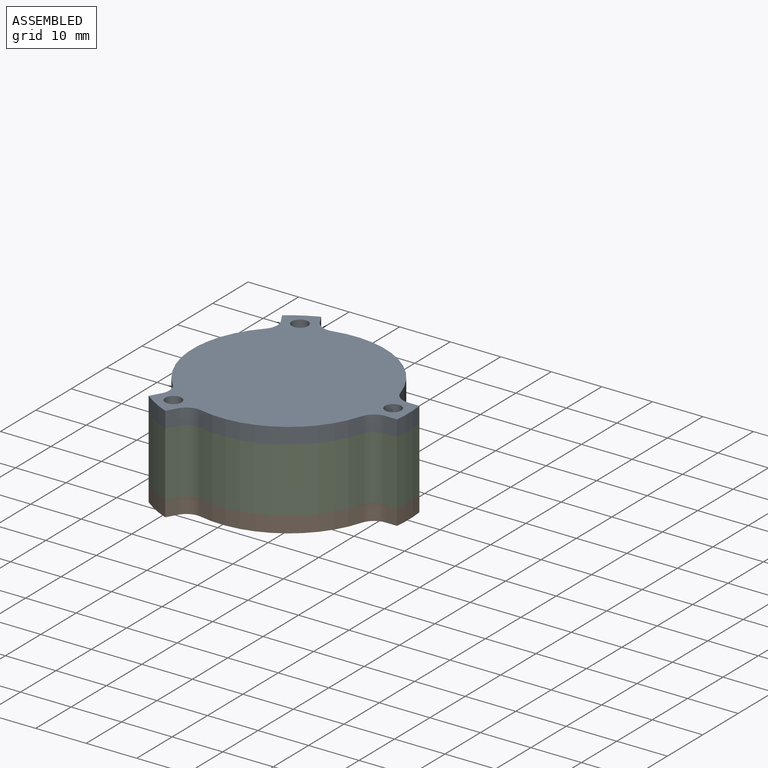
[diagram: assembled view]
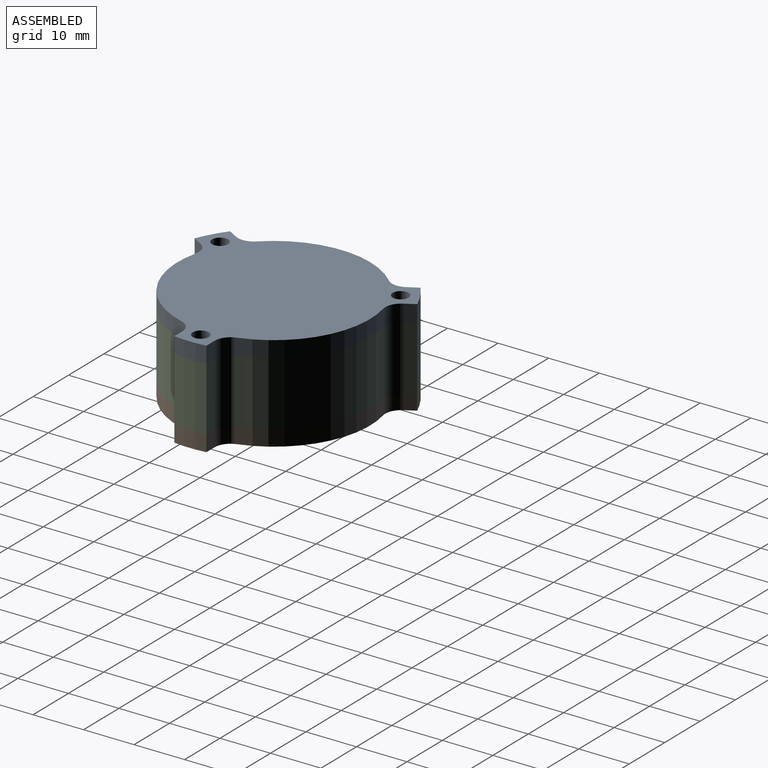
[diagram: assembled view, second angle]
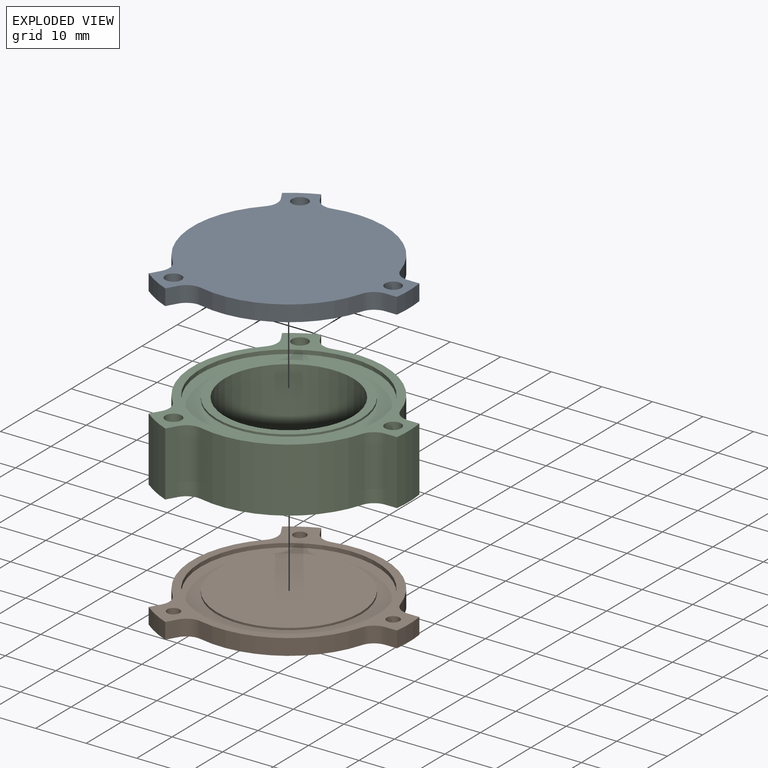
[diagram: exploded view]
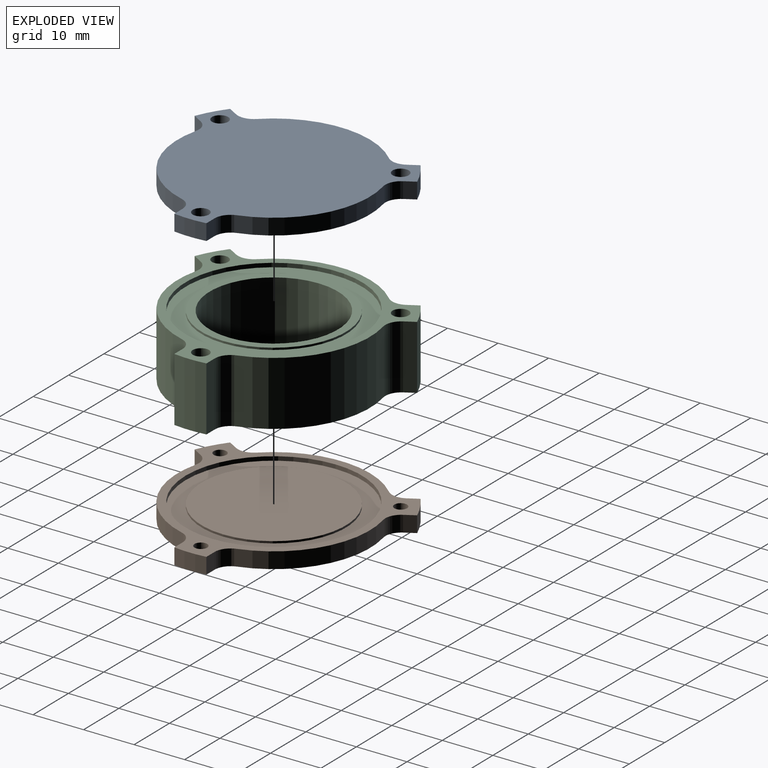
[diagram: exploded view, second angle]
ASSEMBLY  parts=3 mates=6
PART A: 27 faces, bbox 42.9x44.1x3.2 mm
  f0: plane 44.05x42.86mm, normal (0,0,-1), area 256.1mm2, adj f1,f2,f3,f4,f5,f8,f11,f12
  f1: cylinder r=19.05mm len=22.67mm, axis (0,0,-1), area 91.6mm2, adj f0,f6,f13,f19
  f2: plane 3.18x2.3mm, normal (0,-1,0), area 7.3mm2, adj f0,f3,f6,f13
  f3: cylinder r=23.81mm len=6.35mm, axis (0,0,-1), area 20.2mm2, adj f0,f2,f4,f6
  f4: plane 3.18x2.3mm, normal (0,1,0), area 7.3mm2, adj f0,f3,f6,f12
  f5: cylinder r=19.05mm len=22.67mm, axis (0,0,-1), area 91.6mm2, adj f0,f6,f12,f26
  f6: plane 44.05x42.86mm, normal (0,0,1), area 1214mm2, adj f1,f2,f3,f4,f5,f11,f12,f13
  f7: plane 28.58x28.58mm, normal (0,0,-1), area 641.3mm2, adj f9
  f8: cylinder r=17.46mm len=34.93mm, axis (0,0,-1), area 87.1mm2, adj f0,f10
  f9: cylinder r=14.29mm len=28.58mm, axis (0,0,-1), area 35.6mm2, adj f7,f10
  f10: plane 34.93x34.93mm, normal (0,0,-1), area 316.7mm2, adj f8,f9
  f11: cylinder r=1.6mm len=3.2mm, axis (0,0,1), area 31.9mm2, adj f0,f6
  f12: cylinder r=3.17mm len=3.18mm, axis (0,0,-1), area 12.9mm2, adj f0,f4,f5,f6
  f13: cylinder r=3.17mm len=3.18mm, axis (0,0,-1), area 12.9mm2, adj f0,f1,f2,f6
  f14: cylinder r=19.05mm len=26.18mm, axis (0,0,-1), area 91.6mm2, adj f0,f6,f20,f25
  f15: plane 3.18x1.99mm, normal (-0.87,0.5,0), area 7.3mm2, adj f0,f6,f16,f20
  f16: cylinder r=23.81mm len=5.5mm, axis (0,0,-1), area 20.2mm2, adj f0,f6,f15,f17
  f17: plane 3.18x1.99mm, normal (0.87,-0.5,0), area 7.3mm2, adj f0,f6,f16,f19
  f18: cylinder r=1.6mm len=3.2mm, axis (0,0,1), area 31.9mm2, adj f0,f6
  f19: cylinder r=3.17mm len=3.49mm, axis (0,0,-1), area 12.9mm2, adj f0,f1,f6,f17
  f20: cylinder r=3.17mm len=3.77mm, axis (0,0,-1), area 12.9mm2, adj f0,f6,f14,f15
  f21: plane 3.18x1.99mm, normal (0.87,0.5,0), area 7.3mm2, adj f0,f6,f22,f26
  f22: cylinder r=23.81mm len=5.5mm, axis (0,0,-1), area 20.2mm2, adj f0,f6,f21,f23
  f23: plane 3.18x1.99mm, normal (-0.87,-0.5,0), area 7.3mm2, adj f0,f6,f22,f25
  f24: cylinder r=1.6mm len=3.2mm, axis (0,0,1), area 31.9mm2, adj f0,f6
  f25: cylinder r=3.17mm len=3.77mm, axis (0,0,-1), area 12.9mm2, adj f0,f6,f14,f23
  f26: cylinder r=3.17mm len=3.49mm, axis (0,0,-1), area 12.9mm2, adj f0,f5,f6,f21
PART B: 27 faces, bbox 42.9x44.1x3.2 mm
  f0: cylinder r=19.05mm len=22.67mm, axis (0,0,-1), area 91.6mm2, adj f5,f6,f13,f19
  f1: plane 3.18x2.3mm, normal (0,-1,0), area 7.3mm2, adj f2,f5,f6,f13
  f2: cylinder r=23.81mm len=6.35mm, axis (0,0,-1), area 20.2mm2, adj f1,f3,f5,f6
  f3: plane 3.18x2.3mm, normal (0,1,0), area 7.3mm2, adj f2,f5,f6,f12
  f4: cylinder r=19.05mm len=22.67mm, axis (0,0,-1), area 91.6mm2, adj f5,f6,f12,f26
  f5: plane 44.05x42.86mm, normal (0,0,1), area 265.5mm2, adj f0,f1,f2,f3,f4,f8,f11,f12
  f6: plane 44.05x42.86mm, normal (0,0,-1), area 1223.4mm2, adj f0,f1,f2,f3,f4,f11,f12,f13
  f7: plane 28.58x28.58mm, normal (0,0,1), area 641.3mm2, adj f9
  f8: cylinder r=17.46mm len=34.93mm, axis (0,0,1), area 87.1mm2, adj f5,f10
  f9: cylinder r=14.29mm len=28.58mm, axis (0,0,1), area 35.6mm2, adj f7,f10
  f10: plane 34.93x34.93mm, normal (0,0,1), area 316.7mm2, adj f8,f9
  f11: cylinder r=1.25mm len=3.18mm, axis (0,0,-1), area 24.9mm2, adj f5,f6
  f12: cylinder r=3.17mm len=3.18mm, axis (0,0,-1), area 12.9mm2, adj f3,f4,f5,f6
  f13: cylinder r=3.17mm len=3.18mm, axis (0,0,-1), area 12.9mm2, adj f0,f1,f5,f6
  f14: cylinder r=19.05mm len=26.18mm, axis (0,0,-1), area 91.6mm2, adj f5,f6,f20,f25
  f15: plane 3.18x1.99mm, normal (-0.87,0.5,0), area 7.3mm2, adj f5,f6,f16,f20
  f16: cylinder r=23.81mm len=5.5mm, axis (0,0,-1), area 20.2mm2, adj f5,f6,f15,f17
  f17: plane 3.18x1.99mm, normal (0.87,-0.5,0), area 7.3mm2, adj f5,f6,f16,f19
  f18: cylinder r=1.25mm len=3.18mm, axis (0,0,-1), area 24.9mm2, adj f5,f6
  f19: cylinder r=3.17mm len=3.49mm, axis (0,0,-1), area 12.9mm2, adj f0,f5,f6,f17
  f20: cylinder r=3.17mm len=3.77mm, axis (0,0,-1), area 12.9mm2, adj f5,f6,f14,f15
  f21: plane 3.18x1.99mm, normal (0.87,0.5,0), area 7.3mm2, adj f5,f6,f22,f26
  f22: cylinder r=23.81mm len=5.5mm, axis (0,0,-1), area 20.2mm2, adj f5,f6,f21,f23
  f23: plane 3.18x1.99mm, normal (-0.87,-0.5,0), area 7.3mm2, adj f5,f6,f22,f25
  f24: cylinder r=1.25mm len=3.18mm, axis (0,0,-1), area 24.9mm2, adj f5,f6
  f25: cylinder r=3.17mm len=3.77mm, axis (0,0,-1), area 12.9mm2, adj f5,f6,f14,f23
  f26: cylinder r=3.17mm len=3.49mm, axis (0,0,-1), area 12.9mm2, adj f4,f5,f6,f21
PART C: 32 faces, bbox 42.9x44.1x12.7 mm
  f0: plane 44.05x42.86mm, normal (0,0,-1), area 256.1mm2, adj f2,f3,f4,f5,f6,f13,f16,f17
  f1: cylinder r=12.7mm len=25.4mm, axis (0,0,1), area 950.1mm2, adj f8,f12
  f2: cylinder r=19.05mm len=22.67mm, axis (0,0,-1), area 366.5mm2, adj f0,f7,f16,f24
  f3: plane 12.7x2.3mm, normal (0,-1,0), area 29.2mm2, adj f0,f4,f7,f16
  f4: cylinder r=23.81mm len=12.7mm, axis (0,0,-1), area 80.9mm2, adj f0,f3,f5,f7
  f5: plane 12.7x2.3mm, normal (0,1,0), area 29.2mm2, adj f0,f4,f7,f17
  f6: cylinder r=19.05mm len=22.67mm, axis (0,0,-1), area 366.5mm2, adj f0,f7,f17,f29
  f7: plane 44.05x42.86mm, normal (0,0,1), area 256.1mm2, adj f2,f3,f4,f5,f6,f9,f16,f17
  f8: plane 28.58x28.58mm, normal (0,0,1), area 134.6mm2, adj f1,f10
  f9: cylinder r=17.46mm len=34.93mm, axis (0,0,1), area 87.1mm2, adj f7,f11
  f10: cylinder r=14.29mm len=28.58mm, axis (0,0,1), area 35.6mm2, adj f8,f11
  f11: plane 34.93x34.93mm, normal (0,0,1), area 316.7mm2, adj f9,f10
  f12: plane 28.58x28.58mm, normal (0,0,-1), area 134.6mm2, adj f1,f14
  f13: cylinder r=17.46mm len=34.93mm, axis (0,0,-1), area 87.1mm2, adj f0,f15
  f14: cylinder r=14.29mm len=28.58mm, axis (0,0,-1), area 35.6mm2, adj f12,f15
  f15: plane 34.93x34.93mm, normal (0,0,-1), area 316.7mm2, adj f13,f14
  f16: cylinder r=3.17mm len=12.7mm, axis (0,0,-1), area 51.7mm2, adj f0,f2,f3,f7
  f17: cylinder r=3.17mm len=12.7mm, axis (0,0,-1), area 51.7mm2, adj f0,f5,f6,f7
  f18: cylinder r=1.6mm len=12.7mm, axis (0,0,1), area 127.7mm2, adj f0,f7
  f19: cylinder r=19.05mm len=26.18mm, axis (0,0,-1), area 366.5mm2, adj f0,f7,f23,f30
  f20: plane 12.7x1.99mm, normal (-0.87,0.5,0), area 29.2mm2, adj f0,f7,f21,f23
  f21: cylinder r=23.81mm len=12.7mm, axis (0,0,-1), area 80.9mm2, adj f0,f7,f20,f22
  f22: plane 12.7x1.99mm, normal (0.87,-0.5,0), area 29.2mm2, adj f0,f7,f21,f24
  f23: cylinder r=3.17mm len=12.7mm, axis (0,0,-1), area 51.7mm2, adj f0,f7,f19,f20
  f24: cylinder r=3.17mm len=12.7mm, axis (0,0,-1), area 51.7mm2, adj f0,f2,f7,f22
  f25: cylinder r=1.6mm len=12.7mm, axis (0,0,1), area 127.7mm2, adj f0,f7
  f26: plane 12.7x1.99mm, normal (0.87,0.5,0), area 29.2mm2, adj f0,f7,f27,f29
  f27: cylinder r=23.81mm len=12.7mm, axis (0,0,-1), area 80.9mm2, adj f0,f7,f26,f28
  f28: plane 12.7x1.99mm, normal (-0.87,-0.5,0), area 29.2mm2, adj f0,f7,f27,f30
  f29: cylinder r=3.17mm len=12.7mm, axis (0,0,-1), area 51.7mm2, adj f0,f6,f7,f26
  f30: cylinder r=3.17mm len=12.7mm, axis (0,0,-1), area 51.7mm2, adj f0,f7,f19,f28
  f31: cylinder r=1.6mm len=12.7mm, axis (0,0,1), area 127.7mm2, adj f0,f7
PLACE A t=(27.95,10.22,21.45)mm
PLACE B t=(27.95,10.22,5.57)mm
PLACE C t=(27.95,10.22,8.75)mm
MATE parallel C.f3 <-> A.f2  axis (0,-1,0) through (50.4,7.05,15.1)mm
MATE cylindrical A.f1 <-> C.f2  axis (0,0,-1) through (27.95,10.22,21.45)mm
MATE planar B.f4 <-> C.f6  axis (0,0,1) through (27.95,10.22,8.75)mm
MATE cylindrical C.f1 <-> B.f0  axis (0,0,1) through (27.95,10.22,9.14)mm
MATE planar A.f1 <-> C.f2  axis (0,0,-1) through (27.95,10.22,21.45)mm
MATE parallel B.f17 <-> C.f22  axis (0.87,-0.5,0) through (19.47,-10.81,7.16)mm
